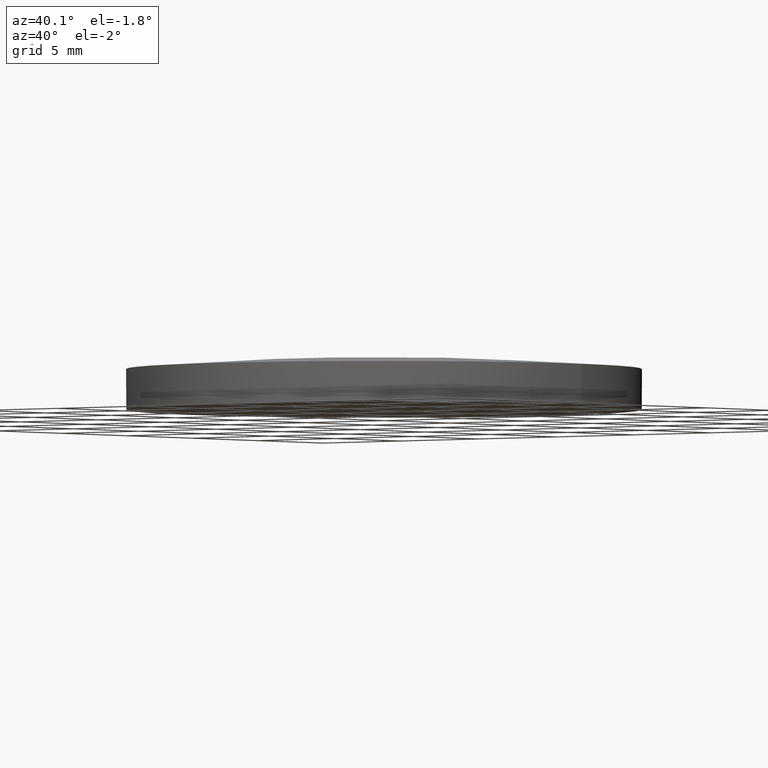
[diagram: clean part render]
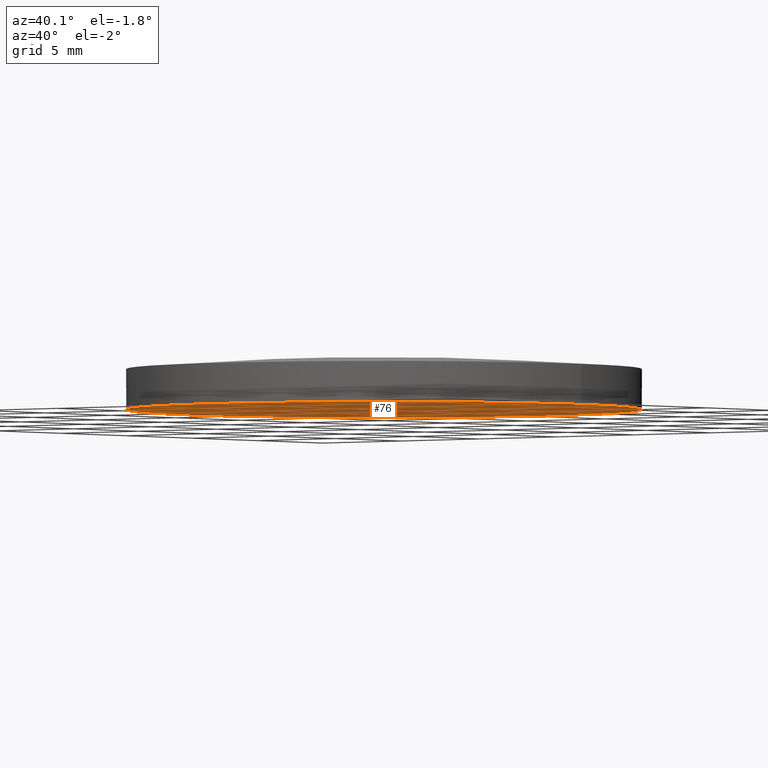
[diagram: same view with one face highlighted and labeled with its STEP entity id]
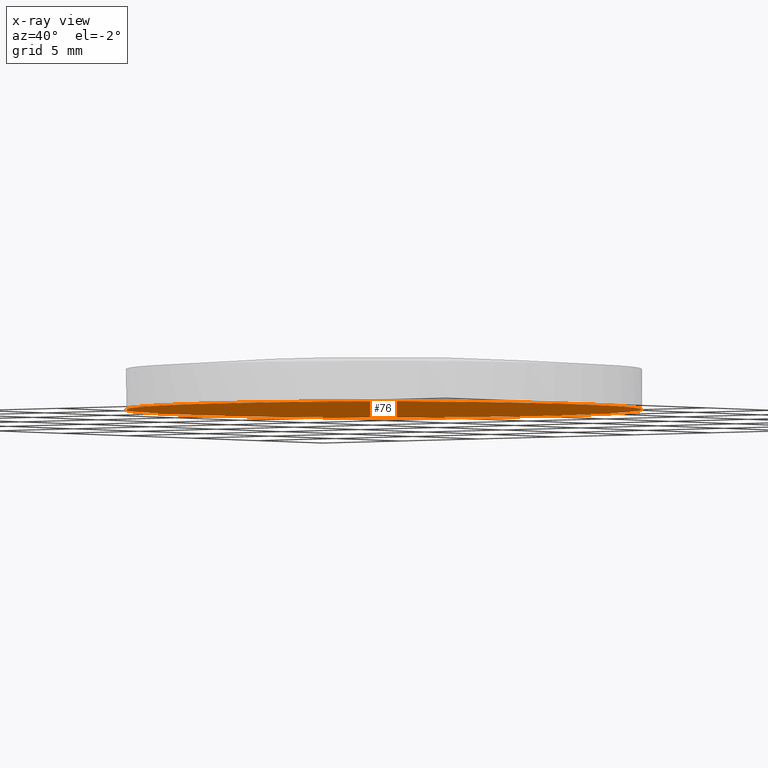
[diagram: x-ray of the same camera — body ghosted, the highlighted face saturated]
A machine part, auxiliary view. The second image highlights one B-rep face of the part: STEP entity #76.
The next image is the same camera in x-ray: the body ghosted, the highlighted face saturated — about 0% of this face is hidden behind the body in this view.
In plain terms, the highlighted planar face has unit normal (0, -0, 1).
Its self-contained STEP definition (entity closure, byte-faithful):
#13 = ORIENTED_EDGE ( 'NONE', *, *, #34, .F. ) ;
#14 = ORIENTED_EDGE ( 'NONE', *, *, #52, .F. ) ;
#34 = EDGE_CURVE ( 'NONE', #49, #36, #128, .T. ) ;
#36 = VERTEX_POINT ( 'NONE', #123 ) ;
#49 = VERTEX_POINT ( 'NONE', #166 ) ;
#52 = EDGE_CURVE ( 'NONE', #36, #49, #165, .T. ) ;
#64 = EDGE_LOOP ( 'NONE', ( #13, #14 ) ) ;
#76 = ADVANCED_FACE ( 'NONE', ( #198 ), #201, .F. ) ;
#123 = CARTESIAN_POINT ( 'NONE',  ( -12.69999999999999900, 1.555250069354419100E-015, -1.259999999999999800 ) ) ;
#124 = DIRECTION ( 'NONE',  ( 1.000000000000000000, 0.0000000000000000000, 0.0000000000000000000 ) ) ;
#125 = DIRECTION ( 'NONE',  ( -0.0000000000000000000, -0.0000000000000000000, 1.000000000000000000 ) ) ;
#126 = CARTESIAN_POINT ( 'NONE',  ( 0.0000000000000000000, 0.0000000000000000000, -1.259999999999999800 ) ) ;
#127 = AXIS2_PLACEMENT_3D ( 'NONE', #126, #125, #124 ) ;
#128 = CIRCLE ( 'NONE', #127, 12.69999999999999900 ) ;
#158 = DIRECTION ( 'NONE',  ( 1.000000000000000000, 0.0000000000000000000, 0.0000000000000000000 ) ) ;
#159 = DIRECTION ( 'NONE',  ( -0.0000000000000000000, -0.0000000000000000000, 1.000000000000000000 ) ) ;
#160 = CARTESIAN_POINT ( 'NONE',  ( 0.0000000000000000000, 0.0000000000000000000, -1.259999999999999800 ) ) ;
#165 = CIRCLE ( 'NONE', #205, 12.69999999999999900 ) ;
#166 = CARTESIAN_POINT ( 'NONE',  ( 12.69999999999999900, 0.0000000000000000000, -1.259999999999999800 ) ) ;
#172 = DIRECTION ( 'NONE',  ( 1.000000000000000000, 0.0000000000000000000, 0.0000000000000000000 ) ) ;
#173 = DIRECTION ( 'NONE',  ( 0.0000000000000000000, -0.0000000000000000000, 1.000000000000000000 ) ) ;
#174 = AXIS2_PLACEMENT_3D ( 'NONE', #200, #173, #172 ) ;
#198 = FACE_OUTER_BOUND ( 'NONE', #64, .T. ) ;
#200 = CARTESIAN_POINT ( 'NONE',  ( 0.0000000000000000000, 4.629164900776995200E-016, -1.259999999999999800 ) ) ;
#201 = PLANE ( 'NONE',  #174 ) ;
#205 = AXIS2_PLACEMENT_3D ( 'NONE', #160, #159, #158 ) ;